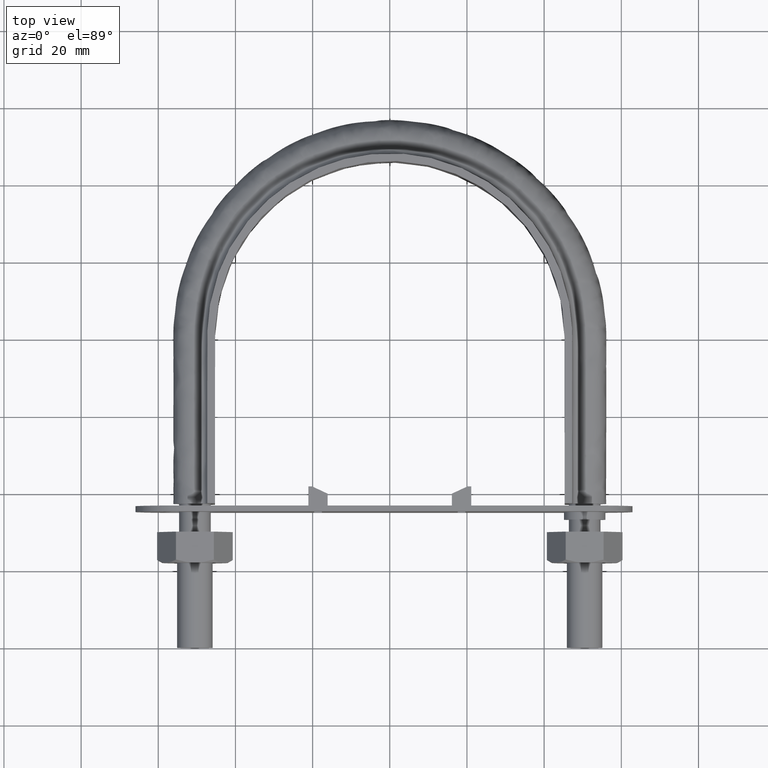
[diagram: clean part render]
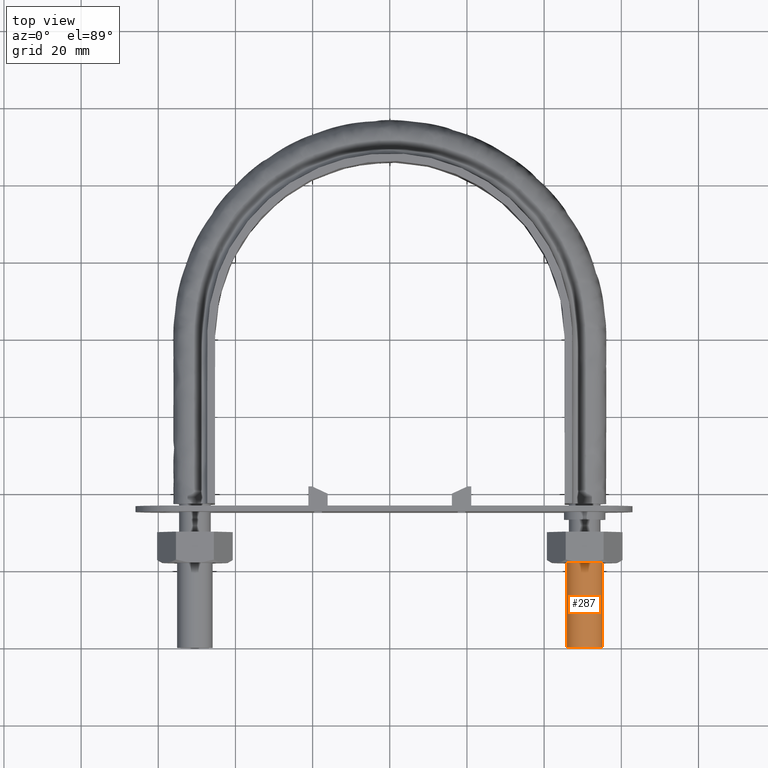
[diagram: same view with one face highlighted and labeled with its STEP entity id]
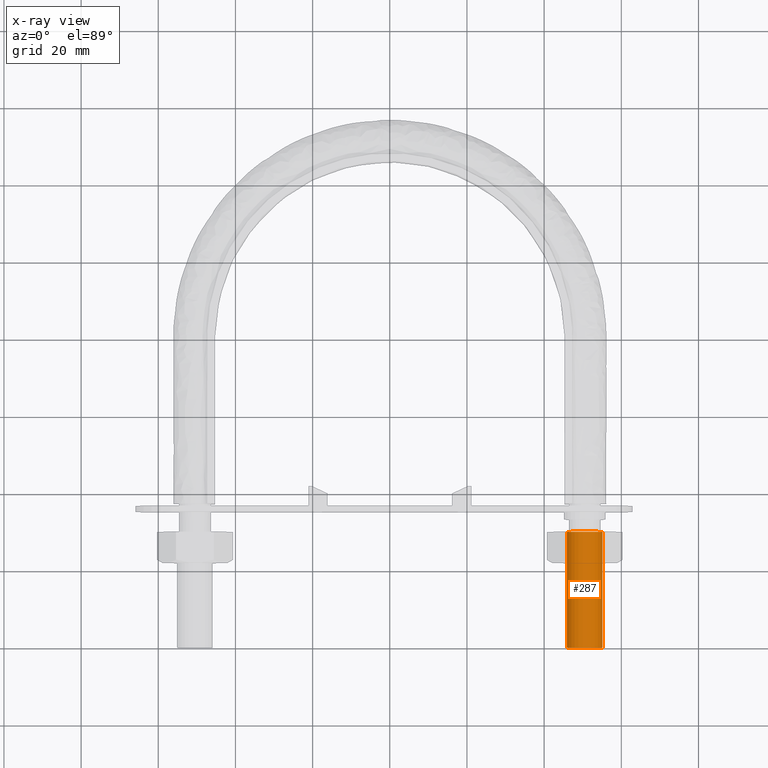
[diagram: x-ray of the same camera — body ghosted, the highlighted face saturated]
A machine part, top view. The second image highlights one B-rep face of the part: STEP entity #287.
The next image is the same camera in x-ray: the body ghosted, the highlighted face saturated — about 0% of this face is hidden behind the body in this view.
In plain terms, the highlighted cylindrical surface (bore or boss wall) has radius 4.6 mm, axis along (-0, -1, -0).
Its self-contained STEP definition (entity closure, byte-faithful):
#287 = ADVANCED_FACE( '', ( #425, #426 ), #427, .T. );
#425 = FACE_OUTER_BOUND( '', #837, .T. );
#426 = FACE_OUTER_BOUND( '', #838, .T. );
#427 = CYLINDRICAL_SURFACE( '', #839, 4.60000000000000 );
#837 = EDGE_LOOP( '', ( #1818 ) );
#838 = EDGE_LOOP( '', ( #1819 ) );
#839 = AXIS2_PLACEMENT_3D( '', #1820, #1821, #1822 );
#1818 = ORIENTED_EDGE( '', *, *, #2513, .F. );
#1819 = ORIENTED_EDGE( '', *, *, #2538, .T. );
#1820 = CARTESIAN_POINT( '', ( 50.5000000000000, 30.0000000000000, 1.89201681665557E-015 ) );
#1821 = DIRECTION( '', ( -2.44921270764475E-016, -1.00000000000000, -6.12303176911189E-017 ) );
#1822 = DIRECTION( '', ( 1.00000000000000, -2.44921270764475E-016, -7.49830360911069E-033 ) );
#2513 = EDGE_CURVE( '', #2755, #2755, #2756, .T. );
#2538 = EDGE_CURVE( '', #2791, #2791, #2792, .T. );
#2755 = VERTEX_POINT( '', #3143 );
#2756 = CIRCLE( '', #3144, 4.60000000000000 );
#2791 = VERTEX_POINT( '', #3221 );
#2792 = CIRCLE( '', #3222, 4.60000000000000 );
#3143 = CARTESIAN_POINT( '', ( 55.1000000000000, -1.34951620191226E-014, 5.51072859220066E-017 ) );
#3144 = AXIS2_PLACEMENT_3D( '', #4019, #4020, #4021 );
#3221 = CARTESIAN_POINT( '', ( 55.1000000000000, 30.0000000000000, 1.89201681665557E-015 ) );
#3222 = AXIS2_PLACEMENT_3D( '', #4052, #4053, #4054 );
#4019 = CARTESIAN_POINT( '', ( 50.5000000000000, -1.23685241736060E-014, 5.51072859220066E-017 ) );
#4020 = DIRECTION( '', ( -2.44921270764476E-016, -1.00000000000000, -6.12303176911189E-017 ) );
#4021 = DIRECTION( '', ( 1.00000000000000, -2.44921270764476E-016, -7.49830360911070E-033 ) );
#4052 = CARTESIAN_POINT( '', ( 50.5000000000000, 30.0000000000000, 1.89201681665557E-015 ) );
#4053 = DIRECTION( '', ( -2.44921270764476E-016, -1.00000000000000, -6.12303176911189E-017 ) );
#4054 = DIRECTION( '', ( 1.00000000000000, -2.44921270764476E-016, -7.49830360911070E-033 ) );